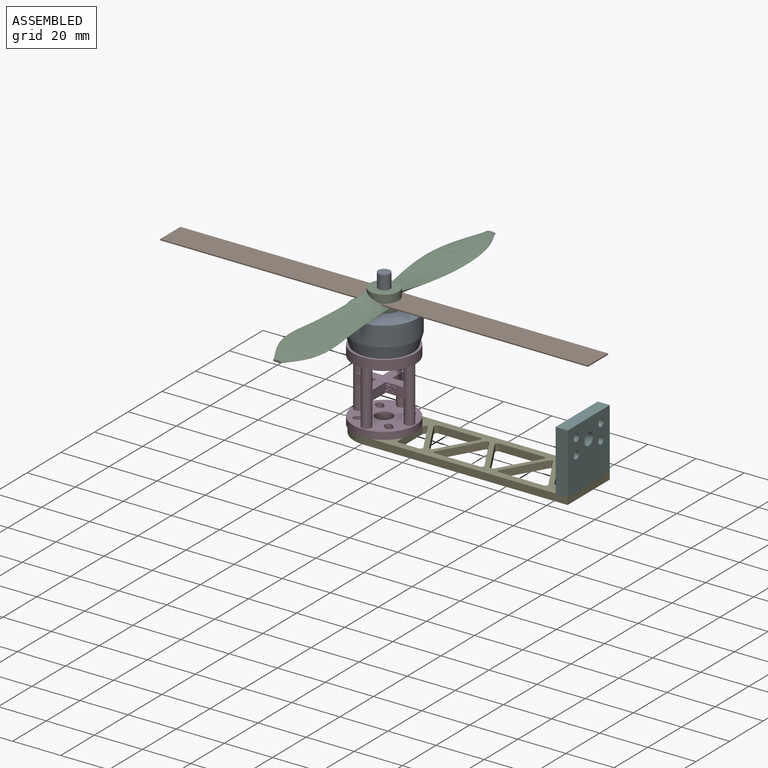
[diagram: assembled view]
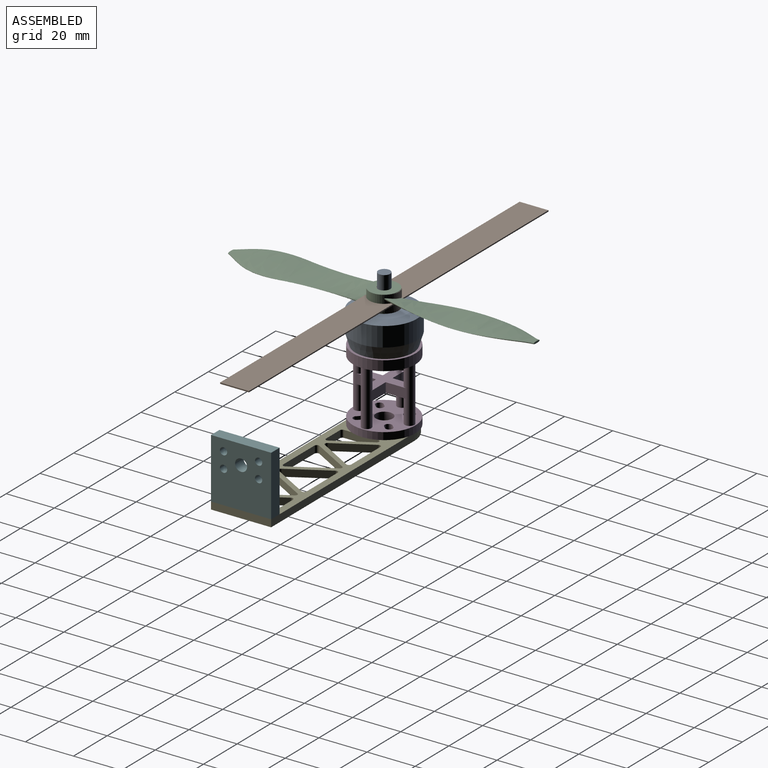
[diagram: assembled view, second angle]
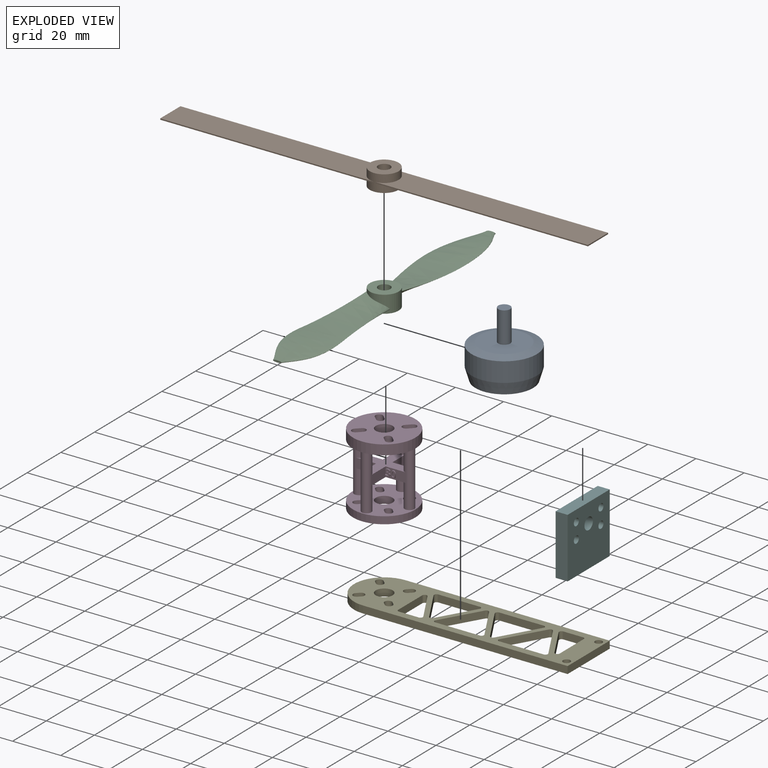
[diagram: exploded view]
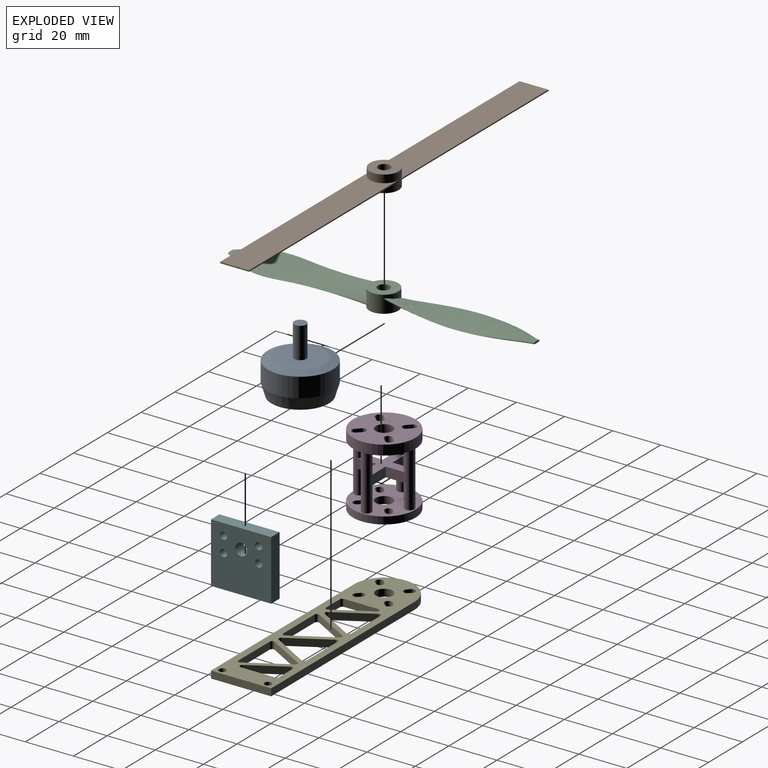
[diagram: exploded view, second angle]
ASSEMBLY  parts=6 mates=4
PART A: 15 faces, bbox 27x27x27.1 mm
  f0: cone r=0.75mm half-angle=59deg, axis (0,0,1), area 8.2mm2, adj f1
  f1: cylinder r=1.5mm len=8mm, axis (0,0,1), area 75.4mm2, adj f0,f12
  f2: cone r=0.75mm half-angle=59deg, axis (0,0,1), area 8.2mm2, adj f3
  f3: cylinder r=1.5mm len=8mm, axis (0,0,1), area 75.4mm2, adj f2,f12
  f4: cone r=0.75mm half-angle=59deg, axis (0,0,1), area 8.2mm2, adj f5
  f5: cylinder r=1.5mm len=8mm, axis (0,0,1), area 75.4mm2, adj f4,f12
  f6: cone r=0.75mm half-angle=59deg, axis (0,0,1), area 8.2mm2, adj f7
  f7: cylinder r=1.5mm len=8mm, axis (0,0,1), area 75.4mm2, adj f6,f12
  f8: cylinder r=2.5mm len=12.9mm, axis (0,0,-1), area 202.6mm2, adj f9,f10
  f9: plane 5x5mm, normal (0,0,-1), area 19.6mm2, adj f8
  f10: plane 20x20mm, normal (0,0,-1), area 294.5mm2, adj f8,f11
  f11: cone r=13.5mm half-angle=72.6deg, axis (0,0,1), area 270.9mm2, adj f10,f14
  f12: plane 24x24mm, normal (0,0,1), area 424.1mm2, adj f1,f3,f5,f7,f13
  f13: cone r=13.5mm half-angle=16.7deg, axis (0,0,-1), area 418.2mm2, adj f12,f14
  f14: cylinder r=13.5mm len=27mm, axis (0,0,1), area 687.1mm2, adj f11,f13
PART B: 13 faces, bbox 177.8x12x7 mm
  f0: cylinder r=6mm len=12mm, axis (0,0,-1), area 122.5mm2, adj f3,f5,f10
  f1: cylinder r=6mm len=12mm, axis (0,0,-1), area 122.5mm2, adj f4,f6,f11
  f2: cylinder r=2.5mm len=7mm, axis (0,0,-1), area 110mm2, adj f3,f4
  f3: plane 12x12mm, normal (0,0,1), area 93.5mm2, adj f0,f2
  f4: plane 12x12mm, normal (0,0,-1), area 93.5mm2, adj f1,f2
  f5: plane 88.9x12mm, normal (0,0,1), area 1010.3mm2, adj f0,f7,f8,f9
  f6: plane 88.9x12mm, normal (0,0,-1), area 1010.3mm2, adj f1,f7,f8,f9
  f7: plane 177.8x0.5mm, normal (0,1,0), area 88.9mm2, adj f5,f6,f9,f10,f11,f12
  f8: plane 177.8x0.5mm, normal (0,-1,0), area 88.9mm2, adj f5,f6,f9,f10,f11,f12
  f9: plane 12x0.5mm, normal (1,0,0), area 6mm2, adj f5,f6,f7,f8
  f10: plane 88.9x12mm, normal (0,0,1), area 1010.3mm2, adj f0,f7,f8,f12
  f11: plane 88.9x12mm, normal (0,0,-1), area 1010.3mm2, adj f1,f7,f8,f12
  f12: plane 12x0.5mm, normal (-1,0,0), area 6mm2, adj f7,f8,f10,f11
PART C: 8 faces, bbox 127x17.2x7.2 mm
  f0: cylinder r=2.5mm len=7.15mm, axis (0,0,1), area 112.3mm2, adj f6,f7
  f1: bspline ~59.96x17.2mm, area 1619.9mm2, adj f2,f5
  f2: plane 3.63x0.84mm, normal (-1,0,0), area 2.4mm2, adj f1
  f3: bspline ~60.19x17.2mm, area 1619.6mm2, adj f4,f5
  f4: plane 3.63x0.84mm, normal (1,0,0), area 2.4mm2, adj f3
  f5: cylinder r=6mm len=12mm, axis (0,0,1), area 233mm2, adj f1,f3,f6,f7
  f6: plane 12x12mm, normal (0,0,-1), area 93.5mm2, adj f0,f5
  f7: plane 12x12mm, normal (0,0,1), area 93.5mm2, adj f0,f5
PART D: 100 faces, bbox 26x30x26 mm
  f0: plane 8.5x4mm, normal (0,0,1), area 26.5mm2, adj f3,f13,f19,f20,f34,f35,f36,f37
  f1: cylinder r=2mm len=22.9mm, axis (0,1,0), area 262.6mm2, adj f11,f13,f14,f19,f20,f80
  f2: cylinder r=2mm len=22.9mm, axis (0,1,0), area 262.6mm2, adj f11,f17,f18,f19,f20,f80
  f3: cylinder r=2mm len=22.9mm, axis (0,1,0), area 262.6mm2, adj f0,f11,f12,f19,f20,f80
  f4: cylinder r=2mm len=22.9mm, axis (0,1,0), area 262.6mm2, adj f11,f15,f16,f19,f20,f80
  f5: plane 26x26mm, normal (0,-1,0), area 446.2mm2, adj f6,f7,f8,f9,f10,f21,f22,f23
  f6: cylinder r=1.5mm len=3mm, axis (0,1,0), area 14.1mm2, adj f5,f7,f10,f11
  f7: plane 3x1.06mm, normal (-0.71,0,-0.71), area 4.5mm2, adj f5,f6,f8,f11
  f8: cylinder r=1.5mm len=3mm, axis (0,1,0), area 14.1mm2, adj f5,f7,f10,f11
  f9: cylinder r=3.5mm len=7mm, axis (0,1,0), area 66mm2, adj f5,f11
  f10: plane 3x1.06mm, normal (0.71,0,0.71), area 4.5mm2, adj f5,f6,f8,f11
  f11: plane 26x26mm, normal (0,1,0), area 395.9mm2, adj f1,f2,f3,f4,f6,f7,f8,f9
  f12: plane 8.5x4mm, normal (0,0,-1), area 34mm2, adj f3,f18,f19,f20
  f13: plane 8.5x4mm, normal (1,0,0), area 34mm2, adj f0,f1,f19,f20
  f14: plane 8.5x4mm, normal (-1,0,0), area 34mm2, adj f1,f15,f19,f20
  f15: plane 8.5x4mm, normal (0,0,1), area 34mm2, adj f4,f14,f19,f20
  f16: plane 8.5x4mm, normal (0,0,-1), area 34mm2, adj f4,f17,f19,f20
  f17: plane 8.5x4mm, normal (-1,0,0), area 34mm2, adj f2,f16,f19,f20
  f18: plane 8.5x4mm, normal (1,0,0), area 34mm2, adj f2,f12,f19,f20
  f19: plane 21x21mm, normal (0,-1,0), area 126.9mm2, adj f0,f1,f2,f3,f4,f12,f13,f14
  f20: plane 21x21mm, normal (0,1,0), area 126.9mm2, adj f0,f1,f2,f3,f4,f12,f13,f14
  f21: cylinder r=1.5mm len=3mm, axis (0,1,0), area 14.1mm2, adj f5,f11,f22,f30
  f22: plane 3x1.06mm, normal (0.71,0,-0.71), area 4.5mm2, adj f5,f11,f21,f23
  f23: cylinder r=1.5mm len=3mm, axis (0,1,0), area 14.1mm2, adj f5,f11,f22,f30
  f24: cylinder r=1.5mm len=3mm, axis (0,1,0), area 14.1mm2, adj f5,f11,f25,f31
  f25: plane 3x1.06mm, normal (0.71,0,0.71), area 4.5mm2, adj f5,f11,f24,f26
  f26: cylinder r=1.5mm len=3mm, axis (0,1,0), area 14.1mm2, adj f5,f11,f25,f31
  f27: cylinder r=1.5mm len=3mm, axis (0,1,0), area 14.1mm2, adj f5,f11,f28,f32
  f28: plane 3x1.06mm, normal (-0.71,0,0.71), area 4.5mm2, adj f5,f11,f27,f29
  f29: cylinder r=1.5mm len=3mm, axis (0,1,0), area 14.1mm2, adj f5,f11,f28,f32
  f30: plane 3x1.06mm, normal (-0.71,0,0.71), area 4.5mm2, adj f5,f11,f21,f23
  f31: plane 3x1.06mm, normal (-0.71,0,-0.71), area 4.5mm2, adj f5,f11,f24,f26
  f32: plane 3x1.06mm, normal (0.71,0,-0.71), area 4.5mm2, adj f5,f11,f27,f29
  f33: cylinder r=13mm len=26mm, axis (0,1,0), area 245mm2, adj f5,f11
  f34: extruded ~0.5x0.44mm, area 0.2mm2, adj f0,f35,f60,f61
  f35: extruded ~0.5x0.49mm, area 0.3mm2, adj f0,f34,f36,f61
  f36: extruded ~0.68x0.5mm, area 0.4mm2, adj f0,f35,f37,f61
  f37: extruded ~0.91x0.5mm, area 0.5mm2, adj f0,f36,f38,f61
  f38: plane 0.5x0.4mm, normal (-0.83,-0.56,0), area 0.2mm2, adj f0,f37,f39,f61
  f39: extruded ~0.5x0.31mm, area 0.2mm2, adj f0,f38,f40,f61
  f40: extruded ~0.5x0.28mm, area 0.1mm2, adj f0,f39,f41,f61
  f41: extruded ~0.5x0.4mm, area 0.3mm2, adj f0,f40,f42,f61
  f42: extruded ~0.5x0.29mm, area 0.2mm2, adj f0,f41,f43,f61
  f43: extruded ~0.5x0.47mm, area 0.2mm2, adj f0,f42,f44,f61
  f44: plane 0.5x0.21mm, normal (0,1,0), area 0.1mm2, adj f0,f43,f45,f61
  f45: plane 0.5x0.45mm, normal (-1,0,0), area 0.2mm2, adj f0,f44,f46,f61
  f46: plane 0.5x0.21mm, normal (0,-1,0), area 0.1mm2, adj f0,f45,f47,f61
  f47: extruded ~0.51x0.5mm, area 0.3mm2, adj f0,f46,f48,f61
  f48: extruded ~0.5x0.28mm, area 0.2mm2, adj f0,f47,f49,f61
  f49: extruded ~0.5x0.32mm, area 0.2mm2, adj f0,f48,f50,f61
  f50: extruded ~0.5x0.43mm, area 0.2mm2, adj f0,f49,f51,f61
  f51: extruded ~0.5x0.38mm, area 0.2mm2, adj f0,f50,f52,f61
  f52: extruded ~0.5x0.36mm, area 0.2mm2, adj f0,f51,f53,f61
  f53: plane 0.5x0.5mm, normal (-1,0,0), area 0.2mm2, adj f0,f52,f54,f61
  f54: extruded ~0.8x0.5mm, area 0.4mm2, adj f0,f53,f55,f61
  f55: extruded ~0.83x0.5mm, area 0.4mm2, adj f0,f54,f56,f61
  f56: extruded ~0.62x0.5mm, area 0.4mm2, adj f0,f55,f57,f61
  f57: extruded ~0.5x0.44mm, area 0.2mm2, adj f0,f56,f58,f61
  f58: extruded ~0.51x0.5mm, area 0.3mm2, adj f0,f57,f59,f61
  f59: plane 0.5x0.01mm, normal (1,0,0), area 0mm2, adj f0,f58,f60,f61
  f60: extruded ~0.5x0.44mm, area 0.3mm2, adj f0,f34,f59,f61
  f61: plane 2.85x1.92mm, normal (0,0,1), area 2.9mm2, adj f34,f35,f36,f37,f38,f39,f40,f41
  f62: extruded ~0.73x0.5mm, area 0.4mm2, adj f63,f77,f78,f79
  f63: extruded ~0.73x0.5mm, area 0.4mm2, adj f62,f64,f78,f79
  f64: extruded ~0.5x0.3mm, area 0.2mm2, adj f63,f65,f78,f79
  f65: extruded ~0.5x0.3mm, area 0.2mm2, adj f64,f66,f78,f79
  f66: extruded ~0.73x0.5mm, area 0.4mm2, adj f65,f67,f78,f79
  f67: extruded ~0.73x0.5mm, area 0.4mm2, adj f66,f68,f78,f79
  f68: extruded ~0.5x0.3mm, area 0.2mm2, adj f67,f77,f78,f79
  f69: extruded ~1.08x0.5mm, area 0.6mm2, adj f0,f70,f76,f78
  f70: extruded ~1.07x0.5mm, area 0.6mm2, adj f0,f69,f71,f78
  f71: extruded ~0.73x0.5mm, area 0.4mm2, adj f0,f70,f72,f78
  f72: extruded ~0.73x0.5mm, area 0.4mm2, adj f0,f71,f73,f78
  f73: extruded ~1.08x0.5mm, area 0.6mm2, adj f0,f72,f74,f78
  f74: extruded ~1.07x0.5mm, area 0.6mm2, adj f0,f73,f75,f78
  f75: extruded ~0.72x0.5mm, area 0.4mm2, adj f0,f74,f76,f78
  f76: extruded ~0.73x0.5mm, area 0.4mm2, adj f0,f69,f75,f78
  f77: extruded ~0.5x0.3mm, area 0.2mm2, adj f62,f68,f78,f79
  f78: plane 2.86x1.94mm, normal (0,0,1), area 3.4mm2, adj f62,f63,f64,f65,f66,f67,f68,f69
  f79: plane 1.91x0.77mm, normal (0,0,1), area 1.3mm2, adj f62,f63,f64,f65,f66,f67,f68,f77
  f80: plane 26x26mm, normal (0,-1,0), area 385.1mm2, adj f1,f2,f3,f4,f81,f82,f83,f84
  f81: plane 4.1x1.7mm, normal (-0.71,0,-0.71), area 9.8mm2, adj f80,f82,f84,f98
  f82: cylinder r=1.5mm len=4.1mm, axis (0,1,0), area 19.3mm2, adj f80,f81,f83,f98
  f83: plane 4.1x1.7mm, normal (0.71,0,0.71), area 9.8mm2, adj f80,f82,f84,f98
  f84: cylinder r=1.5mm len=4.1mm, axis (0,1,0), area 19.3mm2, adj f80,f81,f83,f98
  f85: plane 4.1x1.7mm, normal (0.71,0,-0.71), area 9.8mm2, adj f80,f86,f88,f98
  f86: cylinder r=1.5mm len=4.1mm, axis (0,1,0), area 19.3mm2, adj f80,f85,f87,f98
  f87: plane 4.1x1.7mm, normal (-0.71,0,0.71), area 9.8mm2, adj f80,f86,f88,f98
  f88: cylinder r=1.5mm len=4.1mm, axis (0,1,0), area 19.3mm2, adj f80,f85,f87,f98
  f89: cylinder r=3.5mm len=7mm, axis (0,1,0), area 90.2mm2, adj f80,f98
  f90: plane 4.1x1.7mm, normal (-0.71,0,0.71), area 9.8mm2, adj f80,f91,f93,f98
  f91: cylinder r=1.5mm len=4.1mm, axis (0,1,0), area 19.3mm2, adj f80,f90,f92,f98
  f92: plane 4.1x1.7mm, normal (0.71,0,-0.71), area 9.8mm2, adj f80,f91,f93,f98
  f93: cylinder r=1.5mm len=4.1mm, axis (0,1,0), area 19.3mm2, adj f80,f90,f92,f98
  f94: plane 4.1x1.7mm, normal (0.71,0,0.71), area 9.8mm2, adj f80,f95,f97,f98
  f95: cylinder r=1.5mm len=4.1mm, axis (0,1,0), area 19.3mm2, adj f80,f94,f96,f98
  f96: plane 4.1x1.7mm, normal (-0.71,0,-0.71), area 9.8mm2, adj f80,f95,f97,f98
  f97: cylinder r=1.5mm len=4.1mm, axis (0,1,0), area 19.3mm2, adj f80,f94,f96,f98
  f98: plane 26x26mm, normal (0,1,0), area 435.4mm2, adj f81,f82,f83,f84,f85,f86,f87,f88
  f99: cylinder r=13mm len=26mm, axis (0,-1,0), area 334.9mm2, adj f80,f98
PART E: 61 faces, bbox 97.5x3x25 mm
  f0: plane 15x8.66mm, normal (-0.87,0,0.5), area 52mm2, adj f1,f5,f55,f58
  f1: cylinder r=1mm len=3mm, axis (0,-1,0), area 6.3mm2, adj f0,f2,f55,f58
  f2: plane 15x8.66mm, normal (0.87,0,0.5), area 52mm2, adj f1,f3,f55,f58
  f3: cylinder r=1mm len=3mm, axis (0,-1,0), area 6.3mm2, adj f2,f4,f55,f58
  f4: plane 17.32x3mm, normal (0,0,-1), area 52mm2, adj f3,f5,f55,f58
  f5: cylinder r=1mm len=3mm, axis (0,-1,0), area 6.3mm2, adj f0,f4,f55,f58
  f6: plane 16x9.24mm, normal (-0.87,0,-0.5), area 55.4mm2, adj f7,f11,f55,f58
  f7: cylinder r=1mm len=3mm, axis (0,-1,0), area 6.3mm2, adj f6,f8,f55,f58
  f8: plane 18.48x3mm, normal (0,0,1), area 55.4mm2, adj f7,f9,f55,f58
  f9: cylinder r=1mm len=3mm, axis (0,-1,0), area 6.3mm2, adj f8,f10,f55,f58
  f10: plane 16x9.24mm, normal (0.87,0,-0.5), area 55.4mm2, adj f9,f11,f55,f58
  f11: cylinder r=1mm len=3mm, axis (0,-1,0), area 6.3mm2, adj f6,f10,f55,f58
  f12: plane 8.24x3mm, normal (0,0,-1), area 24.7mm2, adj f13,f17,f55,f58
  f13: cylinder r=1mm len=3mm, axis (0,-1,0), area 4.7mm2, adj f12,f14,f55,f58
  f14: plane 14.27x3mm, normal (-1,0,0), area 42.8mm2, adj f13,f15,f55,f58
  f15: cylinder r=1mm len=3mm, axis (0,-1,0), area 7.9mm2, adj f14,f16,f55,f58
  f16: plane 14.27x8.24mm, normal (0.87,0,0.5), area 49.4mm2, adj f15,f17,f55,f58
  f17: cylinder r=1mm len=3mm, axis (0,-1,0), area 6.3mm2, adj f12,f16,f55,f58
  f18: plane 8.24x3mm, normal (0,0,1), area 24.7mm2, adj f19,f23,f55,f58
  f19: cylinder r=1mm len=3mm, axis (0,-1,0), area 4.7mm2, adj f18,f20,f55,f58
  f20: plane 14.27x3mm, normal (1,0,0), area 42.8mm2, adj f19,f21,f55,f58
  f21: cylinder r=1mm len=3mm, axis (0,-1,0), area 7.9mm2, adj f20,f22,f55,f58
  f22: plane 14.27x8.24mm, normal (-0.87,0,-0.5), area 49.4mm2, adj f21,f23,f55,f58
  f23: cylinder r=1mm len=3mm, axis (0,-1,0), area 6.3mm2, adj f18,f22,f55,f58
  f24: plane 18.48x3mm, normal (0,0,-1), area 55.4mm2, adj f25,f29,f55,f58
  f25: cylinder r=1mm len=3mm, axis (0,-1,0), area 6.3mm2, adj f24,f26,f55,f58
  f26: plane 16x9.24mm, normal (-0.87,0,0.5), area 55.4mm2, adj f25,f27,f55,f58
  f27: cylinder r=1mm len=3mm, axis (0,-1,0), area 6.3mm2, adj f26,f28,f55,f58
  f28: plane 16x9.24mm, normal (0.87,0,0.5), area 55.4mm2, adj f27,f29,f55,f58
  f29: cylinder r=1mm len=3mm, axis (0,-1,0), area 6.3mm2, adj f24,f28,f55,f58
  f30: plane 16x9.24mm, normal (-0.87,0,-0.5), area 55.4mm2, adj f31,f35,f55,f58
  f31: cylinder r=1mm len=3mm, axis (0,-1,0), area 6.3mm2, adj f30,f32,f55,f58
  f32: plane 18.48x3mm, normal (0,0,1), area 55.4mm2, adj f31,f33,f55,f58
  f33: cylinder r=1mm len=3mm, axis (0,-1,0), area 6.3mm2, adj f32,f34,f55,f58
  f34: plane 16x9.24mm, normal (0.87,0,-0.5), area 55.4mm2, adj f33,f35,f55,f58
  f35: cylinder r=1mm len=3mm, axis (0,-1,0), area 6.3mm2, adj f30,f34,f55,f58
  f36: cylinder r=1.5mm len=3mm, axis (0,1,0), area 14.1mm2, adj f37,f39,f55,f58
  f37: plane 3x1.06mm, normal (-0.71,0,-0.71), area 4.5mm2, adj f36,f38,f55,f58
  f38: cylinder r=1.5mm len=3mm, axis (0,1,0), area 14.1mm2, adj f37,f39,f55,f58
  f39: plane 3x1.06mm, normal (0.71,0,0.71), area 4.5mm2, adj f36,f38,f55,f58
  f40: cylinder r=1.5mm len=3mm, axis (0,1,0), area 14.1mm2, adj f41,f43,f55,f58
  f41: plane 3x1.06mm, normal (-0.71,0,0.71), area 4.5mm2, adj f40,f42,f55,f58
  f42: cylinder r=1.5mm len=3mm, axis (0,1,0), area 14.1mm2, adj f41,f43,f55,f58
  f43: plane 3x1.06mm, normal (0.71,0,-0.71), area 4.5mm2, adj f40,f42,f55,f58
  f44: cylinder r=1.5mm len=3mm, axis (0,1,0), area 14.1mm2, adj f45,f47,f55,f58
  f45: plane 3x1.06mm, normal (0.71,0,0.71), area 4.5mm2, adj f44,f46,f55,f58
  f46: cylinder r=1.5mm len=3mm, axis (0,1,0), area 14.1mm2, adj f45,f47,f55,f58
  f47: plane 3x1.06mm, normal (-0.71,0,-0.71), area 4.5mm2, adj f44,f46,f55,f58
  f48: cylinder r=1.5mm len=3mm, axis (0,1,0), area 14.1mm2, adj f49,f51,f55,f58
  f49: plane 3x1.06mm, normal (0.71,0,-0.71), area 4.5mm2, adj f48,f50,f55,f58
  f50: cylinder r=1.5mm len=3mm, axis (0,1,0), area 14.1mm2, adj f49,f51,f55,f58
  f51: plane 3x1.06mm, normal (-0.71,0,0.71), area 4.5mm2, adj f48,f50,f55,f58
  f52: cylinder r=1.5mm len=3mm, axis (0,-1,0), area 28.3mm2, adj f55,f58
  f53: cylinder r=1.5mm len=3mm, axis (0,-1,0), area 28.3mm2, adj f55,f58
  f54: cylinder r=3.5mm len=7mm, axis (0,-1,0), area 66mm2, adj f55,f58
  f55: plane 97.5x25mm, normal (0,-1,0), area 1265.7mm2, adj f0,f1,f2,f3,f4,f5,f6,f7
  f56: cylinder r=12.5mm len=25mm, axis (0,1,0), area 117.8mm2, adj f55,f58,f59,f60
  f57: plane 25x3mm, normal (1,0,0), area 75mm2, adj f55,f58,f59,f60
  f58: plane 97.5x25mm, normal (0,1,0), area 1265.7mm2, adj f0,f1,f2,f3,f4,f5,f6,f7
  f59: plane 85x3mm, normal (0,0,-1), area 255mm2, adj f55,f56,f57,f58
  f60: plane 85x3mm, normal (0,0,1), area 255mm2, adj f55,f56,f57,f58
PART F: 15 faces, bbox 25x5x25 mm
  f0: cylinder r=1.5mm len=5mm, axis (0,-1,0), area 47.1mm2, adj f10,f12
  f1: cylinder r=1.5mm len=5mm, axis (0,-1,0), area 47.1mm2, adj f10,f12
  f2: cylinder r=1.5mm len=5mm, axis (0,-1,0), area 47.1mm2, adj f10,f12
  f3: cylinder r=1.5mm len=5mm, axis (0,-1,0), area 47.1mm2, adj f10,f12
  f4: cylinder r=2.5mm len=5mm, axis (0,-1,0), area 78.5mm2, adj f10,f12
  f5: cone r=0.75mm half-angle=59deg, axis (1,0,0), area 8.2mm2, adj f6
  f6: cylinder r=1.5mm len=8mm, axis (1,0,0), area 75.4mm2, adj f5,f9
  f7: cone r=0.75mm half-angle=59deg, axis (1,0,0), area 8.2mm2, adj f8
  f8: cylinder r=1.5mm len=8mm, axis (1,0,0), area 75.4mm2, adj f7,f9
  f9: plane 25x5mm, normal (1,0,0), area 110.9mm2, adj f6,f8,f10,f12,f13,f14
  f10: plane 25x25mm, normal (0,-1,0), area 577.1mm2, adj f0,f1,f2,f3,f4,f9,f11,f13
  f11: plane 25x5mm, normal (-1,0,0), area 125mm2, adj f10,f12,f13,f14
  f12: plane 25x25mm, normal (0,1,0), area 577.1mm2, adj f0,f1,f2,f3,f4,f9,f11,f13
  f13: plane 25x5mm, normal (0,0,-1), area 125mm2, adj f9,f10,f11,f12
  f14: plane 25x5mm, normal (0,0,1), area 125mm2, adj f9,f10,f11,f12
PLACE A rot(axis=(1,0,0),180deg) t=(-17.03,-40.77,53.04)mm
PLACE B t=(-17.03,-40.77,46.99)mm
PLACE C rot(axis=(0,0,-1),90deg) t=(-16.92,-40.88,54.14)mm
PLACE D rot(axis=(1,0,0),90deg) t=(-29.53,-28.27,42.94)mm
PLACE E rot(axis=(-1,0,0),90deg) t=(-29.53,-53.27,6.94)mm
PLACE F rot(axis=(0.58,0.58,-0.58),120deg) t=(67.97,-28.27,34.94)mm
MATE revolute B.f0 <-> A.f8  axis (0,0,-1) through (-17.03,-40.77,54.14)mm
MATE fastened A.f8 <-> D.f9  axis (0,0,-1) through (-17.03,-40.77,39.94)mm
MATE fastened F.f7 <-> E.f52  axis (0,0,-1) through (65.47,-50.27,9.94)mm
MATE fastened D.f9 <-> E.f54  axis (0,0,-1) through (-17.03,-40.77,9.94)mm
